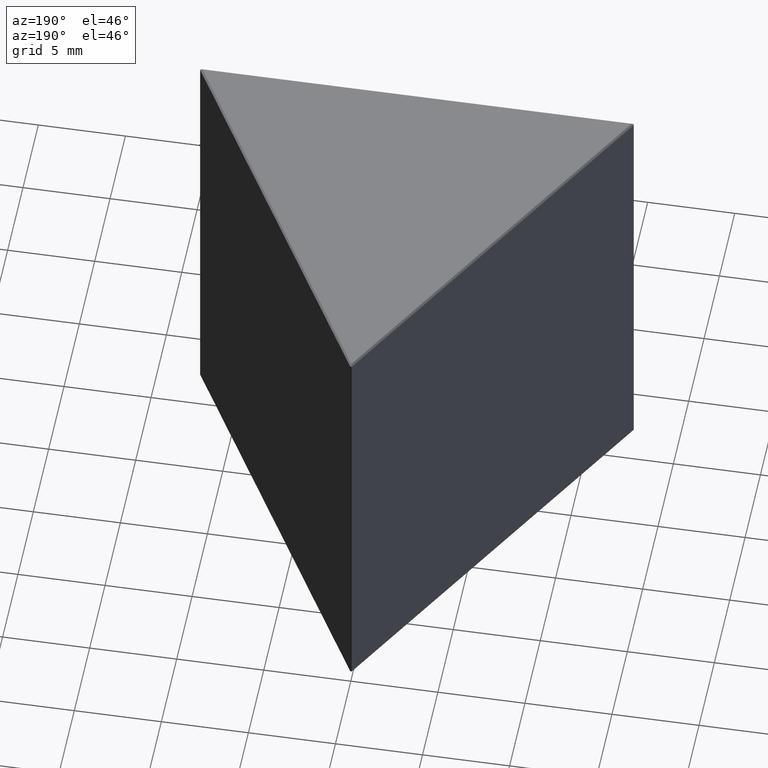
[diagram: clean part render]
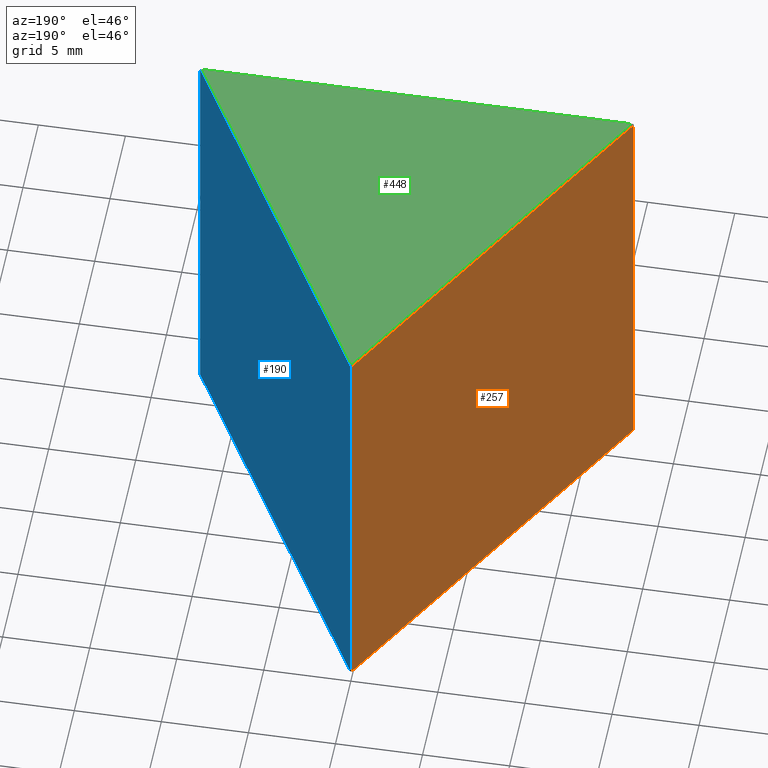
[diagram: same view with three faces highlighted in distinct colors, each labeled with its STEP entity id]
A machine part, auxiliary view with three faces highlighted in distinct colors.
Their STEP definitions:

[orange] entity #257 — the highlighted planar face has unit normal (0.866, -0.5, 0).
#25 = EDGE_CURVE ( 'NONE', #404, #365, #231, .T. ) ;
#54 = DIRECTION ( 'NONE',  ( 0.000000000000000000, 0.000000000000000000, -1.000000000000000000 ) ) ;
#70 = DIRECTION ( 'NONE',  ( 0.5000000000000000000, 0.8660254037844385966, 0.000000000000000000 ) ) ;
#93 = CARTESIAN_POINT ( 'NONE',  ( -0.03660254037844570818, -0.06339745962155932113, 24.90000000000000213 ) ) ;
#96 = LINE ( 'NONE', #152, #306 ) ;
#117 = FACE_OUTER_BOUND ( 'NONE', #462, .T. ) ;
#122 = ORIENTED_EDGE ( 'NONE', *, *, #420, .T. ) ;
#132 = VECTOR ( 'NONE', #54, 1000.000000000000000 ) ;
#136 = EDGE_CURVE ( 'NONE', #391, #404, #437, .T. ) ;
#144 = CARTESIAN_POINT ( 'NONE',  ( -12.44999999999999396, -21.56403255423251153, 24.90000000000000213 ) ) ;
#152 = CARTESIAN_POINT ( 'NONE',  ( 0.000000000000000000, 0.000000000000000000, 0.09999999999999592548 ) ) ;
#159 = LINE ( 'NONE', #278, #132 ) ;
#160 = CARTESIAN_POINT ( 'NONE',  ( 0.000000000000000000, 0.000000000000000000, 25.00000000000000000 ) ) ;
#170 = ORIENTED_EDGE ( 'NONE', *, *, #136, .T. ) ;
#191 = CARTESIAN_POINT ( 'NONE',  ( 2.480284612299828421E-18, 4.295978965734572751E-18, 24.90000000000000213 ) ) ;
#223 = EDGE_CURVE ( 'NONE', #237, #391, #96, .T. ) ;
#231 = LINE ( 'NONE', #191, #296 ) ;
#237 = VERTEX_POINT ( 'NONE', #339 ) ;
#252 = CARTESIAN_POINT ( 'NONE',  ( -12.44999999999999574, -21.56403255423251508, 25.00000000000000000 ) ) ;
#257 = ADVANCED_FACE ( 'NONE', ( #117 ), #414, .F. ) ;
#261 = VECTOR ( 'NONE', #328, 1000.000000000000000 ) ;
#272 = DIRECTION ( 'NONE',  ( 0.8660254037844387076, -0.5000000000000001110, 0.000000000000000000 ) ) ;
#275 = DIRECTION ( 'NONE',  ( 0.5000000000000001110, 0.8660254037844387076, 0.000000000000000000 ) ) ;
#278 = CARTESIAN_POINT ( 'NONE',  ( -0.03660254037844570818, -0.06339745962155932113, 25.00000000000000000 ) ) ;
#285 = ORIENTED_EDGE ( 'NONE', *, *, #25, .T. ) ;
#296 = VECTOR ( 'NONE', #275, 999.9999999999998863 ) ;
#297 = AXIS2_PLACEMENT_3D ( 'NONE', #160, #272, #70 ) ;
#306 = VECTOR ( 'NONE', #309, 999.9999999999998863 ) ;
#309 = DIRECTION ( 'NONE',  ( -0.5000000000000001110, -0.8660254037844387076, 0.000000000000000000 ) ) ;
#328 = DIRECTION ( 'NONE',  ( 0.000000000000000000, 0.000000000000000000, 1.000000000000000000 ) ) ;
#339 = CARTESIAN_POINT ( 'NONE',  ( -0.03660254037844570818, -0.06339745962155932113, 0.09999999999999592548 ) ) ;
#365 = VERTEX_POINT ( 'NONE', #93 ) ;
#391 = VERTEX_POINT ( 'NONE', #441 ) ;
#404 = VERTEX_POINT ( 'NONE', #144 ) ;
#414 = PLANE ( 'NONE',  #297 ) ;
#420 = EDGE_CURVE ( 'NONE', #365, #237, #159, .T. ) ;
#437 = LINE ( 'NONE', #252, #261 ) ;
#441 = CARTESIAN_POINT ( 'NONE',  ( -12.44999999999999396, -21.56403255423251153, 0.09999999999999592548 ) ) ;
#462 = EDGE_LOOP ( 'NONE', ( #170, #285, #122, #482 ) ) ;
#482 = ORIENTED_EDGE ( 'NONE', *, *, #223, .T. ) ;

[blue] entity #190 — the highlighted planar face has unit normal (-0.866, -0.5, 0).
#18 = AXIS2_PLACEMENT_3D ( 'NONE', #105, #373, #183 ) ;
#21 = VERTEX_POINT ( 'NONE', #38 ) ;
#38 = CARTESIAN_POINT ( 'NONE',  ( 0.05000000000000286854, -0.08660254037844881958, 24.90000000000000213 ) ) ;
#41 = CARTESIAN_POINT ( 'NONE',  ( 12.46339745962155732, -21.58723763498941040, 24.90000000000000213 ) ) ;
#59 = VERTEX_POINT ( 'NONE', #41 ) ;
#71 = ORIENTED_EDGE ( 'NONE', *, *, #130, .T. ) ;
#83 = ORIENTED_EDGE ( 'NONE', *, *, #184, .T. ) ;
#87 = LINE ( 'NONE', #243, #226 ) ;
#105 = CARTESIAN_POINT ( 'NONE',  ( 12.50000000000000000, -21.65063509461096558, 25.00000000000000000 ) ) ;
#130 = EDGE_CURVE ( 'NONE', #395, #21, #481, .T. ) ;
#157 = VERTEX_POINT ( 'NONE', #356 ) ;
#164 = EDGE_CURVE ( 'NONE', #157, #395, #87, .T. ) ;
#165 = DIRECTION ( 'NONE',  ( 0.000000000000000000, 0.000000000000000000, -1.000000000000000000 ) ) ;
#176 = DIRECTION ( 'NONE',  ( 0.000000000000000000, 0.000000000000000000, 1.000000000000000000 ) ) ;
#177 = ORIENTED_EDGE ( 'NONE', *, *, #469, .T. ) ;
#183 = DIRECTION ( 'NONE',  ( 0.5000000000000000000, -0.8660254037844385966, 0.000000000000000000 ) ) ;
#184 = EDGE_CURVE ( 'NONE', #21, #59, #186, .T. ) ;
#186 = LINE ( 'NONE', #298, #312 ) ;
#189 = DIRECTION ( 'NONE',  ( 0.5000000000000001110, -0.8660254037844387076, -0.000000000000000000 ) ) ;
#190 = ADVANCED_FACE ( 'NONE', ( #376 ), #265, .F. ) ;
#204 = CARTESIAN_POINT ( 'NONE',  ( 0.05000000000000143219, -0.08660254037844497543, 25.00000000000000000 ) ) ;
#226 = VECTOR ( 'NONE', #394, 999.9999999999998863 ) ;
#243 = CARTESIAN_POINT ( 'NONE',  ( 12.50000000000000000, -21.65063509461096558, 0.09999999999999592548 ) ) ;
#250 = VECTOR ( 'NONE', #176, 1000.000000000000000 ) ;
#251 = VECTOR ( 'NONE', #165, 1000.000000000000000 ) ;
#265 = PLANE ( 'NONE',  #18 ) ;
#298 = CARTESIAN_POINT ( 'NONE',  ( 12.50000000000000000, -21.65063509461096558, 24.90000000000000213 ) ) ;
#312 = VECTOR ( 'NONE', #189, 999.9999999999998863 ) ;
#321 = ORIENTED_EDGE ( 'NONE', *, *, #164, .T. ) ;
#332 = CARTESIAN_POINT ( 'NONE',  ( 0.05000000000000286854, -0.08660254037844880570, 0.09999999999999716060 ) ) ;
#356 = CARTESIAN_POINT ( 'NONE',  ( 12.46339745962155732, -21.58723763498941040, 0.09999999999999716060 ) ) ;
#373 = DIRECTION ( 'NONE',  ( -0.8660254037844387076, -0.5000000000000001110, 0.000000000000000000 ) ) ;
#376 = FACE_OUTER_BOUND ( 'NONE', #381, .T. ) ;
#381 = EDGE_LOOP ( 'NONE', ( #71, #83, #177, #321 ) ) ;
#394 = DIRECTION ( 'NONE',  ( -0.5000000000000001110, 0.8660254037844387076, 0.000000000000000000 ) ) ;
#395 = VERTEX_POINT ( 'NONE', #332 ) ;
#396 = CARTESIAN_POINT ( 'NONE',  ( 12.46339745962155732, -21.58723763498941040, 25.00000000000000000 ) ) ;
#430 = LINE ( 'NONE', #396, #251 ) ;
#469 = EDGE_CURVE ( 'NONE', #59, #157, #430, .T. ) ;
#481 = LINE ( 'NONE', #204, #250 ) ;

[green] entity #448 — the highlighted planar face has unit normal (0, 0, 1).
#7 = DIRECTION ( 'NONE',  ( 1.000000000000000000, 0.000000000000000000, -0.000000000000000000 ) ) ;
#9 = DIRECTION ( 'NONE',  ( -0.5000000000000001110, -0.8660254037844385966, 0.000000000000000000 ) ) ;
#42 = ORIENTED_EDGE ( 'NONE', *, *, #279, .T. ) ;
#46 = CARTESIAN_POINT ( 'NONE',  ( 0.000000000000000000, 0.000000000000000000, 25.00000000000000000 ) ) ;
#53 = VERTEX_POINT ( 'NONE', #273 ) ;
#56 = EDGE_CURVE ( 'NONE', #92, #425, #194, .T. ) ;
#78 = PLANE ( 'NONE',  #497 ) ;
#79 = LINE ( 'NONE', #138, #477 ) ;
#88 = ORIENTED_EDGE ( 'NONE', *, *, #341, .T. ) ;
#92 = VERTEX_POINT ( 'NONE', #129 ) ;
#121 = LINE ( 'NONE', #283, #227 ) ;
#127 = FACE_OUTER_BOUND ( 'NONE', #329, .T. ) ;
#129 = CARTESIAN_POINT ( 'NONE',  ( 12.32679491924311854, -21.55063509461096771, 25.00000000000000000 ) ) ;
#138 = CARTESIAN_POINT ( 'NONE',  ( -12.41339745962155661, -21.70063509461096274, 25.00000000000000000 ) ) ;
#194 = LINE ( 'NONE', #418, #333 ) ;
#202 = DIRECTION ( 'NONE',  ( 0.000000000000000000, 0.000000000000000000, 1.000000000000000000 ) ) ;
#227 = VECTOR ( 'NONE', #390, 1000.000000000000000 ) ;
#273 = CARTESIAN_POINT ( 'NONE',  ( -12.32679491924311677, -21.55063509461096771, 25.00000000000000000 ) ) ;
#276 = ORIENTED_EDGE ( 'NONE', *, *, #56, .T. ) ;
#279 = EDGE_CURVE ( 'NONE', #53, #92, #121, .T. ) ;
#283 = CARTESIAN_POINT ( 'NONE',  ( 12.50000000000000000, -21.55063509461096771, 25.00000000000000000 ) ) ;
#329 = EDGE_LOOP ( 'NONE', ( #88, #42, #276 ) ) ;
#333 = VECTOR ( 'NONE', #385, 1000.000000000000114 ) ;
#341 = EDGE_CURVE ( 'NONE', #425, #53, #79, .T. ) ;
#385 = DIRECTION ( 'NONE',  ( -0.5000000000000001110, 0.8660254037844385966, 0.000000000000000000 ) ) ;
#390 = DIRECTION ( 'NONE',  ( 1.000000000000000000, 0.000000000000000000, 0.000000000000000000 ) ) ;
#418 = CARTESIAN_POINT ( 'NONE',  ( -0.08660254037844182518, -0.04999999999999882316, 25.00000000000000000 ) ) ;
#422 = CARTESIAN_POINT ( 'NONE',  ( 1.083700895443211318E-15, -0.1999999999999971523, 25.00000000000000000 ) ) ;
#425 = VERTEX_POINT ( 'NONE', #422 ) ;
#448 = ADVANCED_FACE ( 'NONE', ( #127 ), #78, .T. ) ;
#477 = VECTOR ( 'NONE', #9, 1000.000000000000114 ) ;
#497 = AXIS2_PLACEMENT_3D ( 'NONE', #46, #202, #7 ) ;